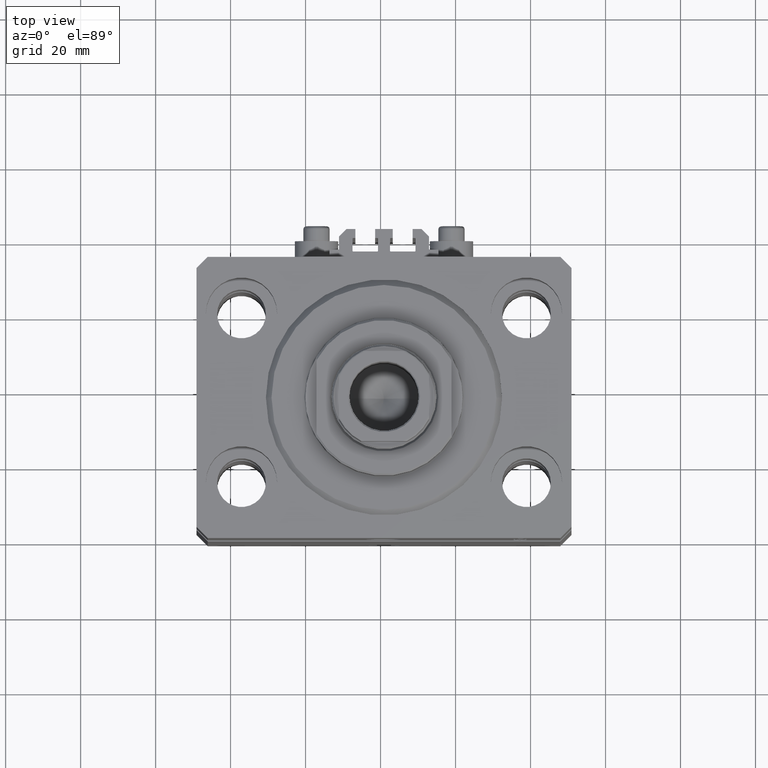
[diagram: clean part render]
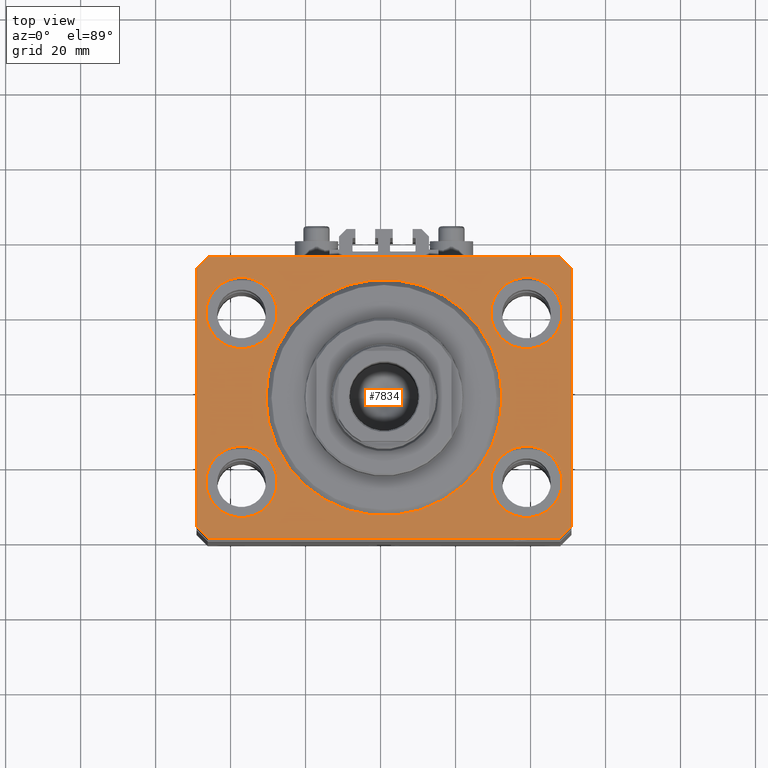
[diagram: same view with one face highlighted and labeled with its STEP entity id]
A machine part, top view. The second image highlights one B-rep face of the part: STEP entity #7834.
In plain terms, the highlighted planar face has unit normal (0, 0, 1).
Its self-contained STEP definition (entity closure, byte-faithful):
#200 = FACE_BOUND ( 'NONE', #35740, .T. ) ;
#749 = VECTOR ( 'NONE', #38030, 1000.000000000000114 ) ;
#789 = VERTEX_POINT ( 'NONE', #18789 ) ;
#1586 = ORIENTED_EDGE ( 'NONE', *, *, #20504, .T. ) ;
#1625 = LINE ( 'NONE', #40938, #749 ) ;
#2263 = EDGE_CURVE ( 'NONE', #32161, #27401, #27659, .T. ) ;
#2522 = ORIENTED_EDGE ( 'NONE', *, *, #18352, .F. ) ;
#2942 = DIRECTION ( 'NONE',  ( 0.000000000000000000, 0.000000000000000000, 1.000000000000000000 ) ) ;
#3011 = CARTESIAN_POINT ( 'NONE',  ( 50.00000000000000000, -34.50000000000000711, 0.000000000000000000 ) ) ;
#3075 = EDGE_CURVE ( 'NONE', #37662, #11479, #1625, .T. ) ;
#3100 = CARTESIAN_POINT ( 'NONE',  ( -47.50000000000000711, -22.50000000000000000, 0.000000000000000000 ) ) ;
#3101 = VERTEX_POINT ( 'NONE', #34403 ) ;
#3264 = CARTESIAN_POINT ( 'NONE',  ( 47.50000000000000711, -22.50000000000000000, 0.000000000000000000 ) ) ;
#3622 = DIRECTION ( 'NONE',  ( 1.000000000000000000, -1.476360405086644309E-16, 0.000000000000000000 ) ) ;
#3758 = VECTOR ( 'NONE', #42220, 1000.000000000000000 ) ;
#3837 = CIRCLE ( 'NONE', #27733, 9.500000000000001776 ) ;
#4015 = CARTESIAN_POINT ( 'NONE',  ( 47.00000000000056843, 37.49999999999999289, 0.000000000000000000 ) ) ;
#4347 = ORIENTED_EDGE ( 'NONE', *, *, #3075, .T. ) ;
#4532 = EDGE_LOOP ( 'NONE', ( #19072, #24451 ) ) ;
#5464 = CIRCLE ( 'NONE', #27794, 9.500000000000001776 ) ;
#5631 = CIRCLE ( 'NONE', #31788, 9.500000000000001776 ) ;
#5672 = AXIS2_PLACEMENT_3D ( 'NONE', #11631, #41055, #22713 ) ;
#5817 = CARTESIAN_POINT ( 'NONE',  ( 47.00000000000056843, 37.49999999999999289, 0.000000000000000000 ) ) ;
#6060 = ORIENTED_EDGE ( 'NONE', *, *, #32330, .T. ) ;
#6082 = CIRCLE ( 'NONE', #21502, 31.50000000000000000 ) ;
#6766 = DIRECTION ( 'NONE',  ( 0.000000000000000000, 0.000000000000000000, 1.000000000000000000 ) ) ;
#7046 = VECTOR ( 'NONE', #3622, 1000.000000000000000 ) ;
#7467 = DIRECTION ( 'NONE',  ( 1.000000000000000000, 0.000000000000000000, 0.000000000000000000 ) ) ;
#7512 = ORIENTED_EDGE ( 'NONE', *, *, #15716, .T. ) ;
#7667 = FACE_BOUND ( 'NONE', #37253, .T. ) ;
#7834 = ADVANCED_FACE ( 'NONE', ( #7667, #200, #29607, #10172, #33691, #24873 ), #39594, .T. ) ;
#7974 = CARTESIAN_POINT ( 'NONE',  ( 50.00000000000051870, 34.49999999999995026, 0.000000000000000000 ) ) ;
#8233 = CARTESIAN_POINT ( 'NONE',  ( 50.00000000000000000, -34.50000000000000711, 0.000000000000000000 ) ) ;
#8620 = CARTESIAN_POINT ( 'NONE',  ( 38.00000000000000711, -22.50000000000000000, 0.000000000000000000 ) ) ;
#8658 = CARTESIAN_POINT ( 'NONE',  ( -38.00000000000000711, 22.50000000000000000, 0.000000000000000000 ) ) ;
#8817 = CIRCLE ( 'NONE', #31924, 9.500000000000001776 ) ;
#8855 = CARTESIAN_POINT ( 'NONE',  ( -47.00000000000001421, 37.50000000000000000, 0.000000000000000000 ) ) ;
#9089 = EDGE_CURVE ( 'NONE', #15171, #27057, #5464, .T. ) ;
#9433 = DIRECTION ( 'NONE',  ( 1.000000000000000000, 0.000000000000000000, 0.000000000000000000 ) ) ;
#9602 = VERTEX_POINT ( 'NONE', #9664 ) ;
#9622 = EDGE_LOOP ( 'NONE', ( #40083, #2522 ) ) ;
#9664 = CARTESIAN_POINT ( 'NONE',  ( -50.00000000000001421, 34.50000000000000000, 0.000000000000000000 ) ) ;
#9956 = CARTESIAN_POINT ( 'NONE',  ( 38.00000000000000711, -22.50000000000000000, 0.000000000000000000 ) ) ;
#10172 = FACE_BOUND ( 'NONE', #4532, .T. ) ;
#10653 = CARTESIAN_POINT ( 'NONE',  ( -50.00000000000001421, 34.50000000000000000, 0.000000000000000000 ) ) ;
#10754 = VECTOR ( 'NONE', #26100, 1000.000000000000000 ) ;
#10801 = EDGE_CURVE ( 'NONE', #11479, #3101, #14469, .T. ) ;
#11479 = VERTEX_POINT ( 'NONE', #35486 ) ;
#11631 = CARTESIAN_POINT ( 'NONE',  ( 0.000000000000000000, 0.000000000000000000, 0.000000000000000000 ) ) ;
#13572 = DIRECTION ( 'NONE',  ( 1.000000000000000000, 0.000000000000000000, 0.000000000000000000 ) ) ;
#13578 = ORIENTED_EDGE ( 'NONE', *, *, #10801, .T. ) ;
#13620 = CIRCLE ( 'NONE', #33639, 9.500000000000001776 ) ;
#13914 = EDGE_CURVE ( 'NONE', #33687, #789, #5631, .T. ) ;
#14192 = DIRECTION ( 'NONE',  ( 1.000000000000000000, 0.000000000000000000, 0.000000000000000000 ) ) ;
#14469 = LINE ( 'NONE', #29184, #7046 ) ;
#14542 = EDGE_CURVE ( 'NONE', #43790, #37620, #34921, .T. ) ;
#14891 = CARTESIAN_POINT ( 'NONE',  ( 0.000000000000000000, 0.000000000000000000, 0.000000000000000000 ) ) ;
#14910 = DIRECTION ( 'NONE',  ( 1.000000000000000000, 0.000000000000000000, 0.000000000000000000 ) ) ;
#14927 = CARTESIAN_POINT ( 'NONE',  ( -38.00000000000000711, -22.50000000000000000, 0.000000000000000000 ) ) ;
#15171 = VERTEX_POINT ( 'NONE', #22143 ) ;
#15439 = CARTESIAN_POINT ( 'NONE',  ( 47.00000000000000000, -37.50000000000000711, 0.000000000000000000 ) ) ;
#15716 = EDGE_CURVE ( 'NONE', #9602, #37662, #28040, .T. ) ;
#16158 = LINE ( 'NONE', #15439, #23688 ) ;
#16218 = AXIS2_PLACEMENT_3D ( 'NONE', #14891, #2942, #22358 ) ;
#16465 = VECTOR ( 'NONE', #25358, 1000.000000000000000 ) ;
#16968 = ORIENTED_EDGE ( 'NONE', *, *, #31865, .F. ) ;
#16973 = ORIENTED_EDGE ( 'NONE', *, *, #14542, .F. ) ;
#17071 = VERTEX_POINT ( 'NONE', #42523 ) ;
#17451 = ORIENTED_EDGE ( 'NONE', *, *, #33978, .T. ) ;
#17576 = ORIENTED_EDGE ( 'NONE', *, *, #26584, .F. ) ;
#18352 = EDGE_CURVE ( 'NONE', #17071, #19749, #8817, .T. ) ;
#18789 = CARTESIAN_POINT ( 'NONE',  ( -28.50000000000000355, -22.50000000000000000, 0.000000000000000000 ) ) ;
#18946 = CARTESIAN_POINT ( 'NONE',  ( 31.50000000000000000, 0.000000000000000000, 0.000000000000000000 ) ) ;
#19072 = ORIENTED_EDGE ( 'NONE', *, *, #36601, .F. ) ;
#19173 = AXIS2_PLACEMENT_3D ( 'NONE', #21423, #47234, #14192 ) ;
#19749 = VERTEX_POINT ( 'NONE', #27395 ) ;
#20504 = EDGE_CURVE ( 'NONE', #28792, #26880, #38892, .T. ) ;
#21423 = CARTESIAN_POINT ( 'NONE',  ( -38.00000000000000711, 22.50000000000000000, 0.000000000000000000 ) ) ;
#21502 = AXIS2_PLACEMENT_3D ( 'NONE', #27751, #42469, #9433 ) ;
#21517 = DIRECTION ( 'NONE',  ( 0.000000000000000000, 0.000000000000000000, 1.000000000000000000 ) ) ;
#22143 = CARTESIAN_POINT ( 'NONE',  ( 28.50000000000000355, -22.50000000000000000, 0.000000000000000000 ) ) ;
#22358 = DIRECTION ( 'NONE',  ( 1.000000000000000000, 0.000000000000000000, -0.000000000000000000 ) ) ;
#22713 = DIRECTION ( 'NONE',  ( 1.000000000000000000, 0.000000000000000000, 0.000000000000000000 ) ) ;
#23006 = DIRECTION ( 'NONE',  ( 1.000000000000000000, 0.000000000000000000, 0.000000000000000000 ) ) ;
#23324 = DIRECTION ( 'NONE',  ( 0.000000000000000000, 0.000000000000000000, 1.000000000000000000 ) ) ;
#23682 = EDGE_CURVE ( 'NONE', #19749, #17071, #13620, .T. ) ;
#23688 = VECTOR ( 'NONE', #30149, 1000.000000000000000 ) ;
#24030 = DIRECTION ( 'NONE',  ( -0.7071067811865483499, -0.7071067811865466846, 0.000000000000000000 ) ) ;
#24451 = ORIENTED_EDGE ( 'NONE', *, *, #2263, .F. ) ;
#24494 = CIRCLE ( 'NONE', #29887, 9.500000000000001776 ) ;
#24799 = DIRECTION ( 'NONE',  ( 0.000000000000000000, 0.000000000000000000, 1.000000000000000000 ) ) ;
#24873 = FACE_OUTER_BOUND ( 'NONE', #40876, .T. ) ;
#25341 = EDGE_CURVE ( 'NONE', #3101, #27514, #16158, .T. ) ;
#25358 = DIRECTION ( 'NONE',  ( 2.011273595335428326E-16, -1.000000000000000000, 0.000000000000000000 ) ) ;
#25642 = LINE ( 'NONE', #3011, #10754 ) ;
#26100 = DIRECTION ( 'NONE',  ( 7.441712302741091634E-15, 1.000000000000000000, 0.000000000000000000 ) ) ;
#26166 = CARTESIAN_POINT ( 'NONE',  ( -31.50000000000000000, 3.857637417314162689E-15, 0.000000000000000000 ) ) ;
#26221 = CARTESIAN_POINT ( 'NONE',  ( -38.00000000000000711, -22.50000000000000000, 0.000000000000000000 ) ) ;
#26333 = ORIENTED_EDGE ( 'NONE', *, *, #25341, .T. ) ;
#26584 = EDGE_CURVE ( 'NONE', #789, #33687, #24494, .T. ) ;
#26880 = VERTEX_POINT ( 'NONE', #4015 ) ;
#27057 = VERTEX_POINT ( 'NONE', #3264 ) ;
#27395 = CARTESIAN_POINT ( 'NONE',  ( 47.50000000000000711, 22.50000000000001421, 0.000000000000000000 ) ) ;
#27401 = VERTEX_POINT ( 'NONE', #30936 ) ;
#27514 = VERTEX_POINT ( 'NONE', #8233 ) ;
#27659 = CIRCLE ( 'NONE', #19173, 9.500000000000001776 ) ;
#27733 = AXIS2_PLACEMENT_3D ( 'NONE', #9956, #31896, #13572 ) ;
#27751 = CARTESIAN_POINT ( 'NONE',  ( 0.000000000000000000, 0.000000000000000000, 0.000000000000000000 ) ) ;
#27794 = AXIS2_PLACEMENT_3D ( 'NONE', #8620, #23324, #44329 ) ;
#28040 = LINE ( 'NONE', #10653, #16465 ) ;
#28509 = DIRECTION ( 'NONE',  ( 1.000000000000000000, 0.000000000000000000, 0.000000000000000000 ) ) ;
#28734 = CARTESIAN_POINT ( 'NONE',  ( 50.00000000000051870, 34.49999999999995026, 0.000000000000000000 ) ) ;
#28792 = VERTEX_POINT ( 'NONE', #7974 ) ;
#29184 = CARTESIAN_POINT ( 'NONE',  ( -47.00000000000000000, -37.49999999999999289, 0.000000000000000000 ) ) ;
#29607 = FACE_BOUND ( 'NONE', #9622, .T. ) ;
#29887 = AXIS2_PLACEMENT_3D ( 'NONE', #14927, #6766, #7467 ) ;
#30149 = DIRECTION ( 'NONE',  ( 0.7071067811865483499, 0.7071067811865466846, 0.000000000000000000 ) ) ;
#30166 = ORIENTED_EDGE ( 'NONE', *, *, #30276, .T. ) ;
#30276 = EDGE_CURVE ( 'NONE', #27514, #28792, #25642, .T. ) ;
#30936 = CARTESIAN_POINT ( 'NONE',  ( -28.50000000000000355, 22.50000000000000000, 0.000000000000000000 ) ) ;
#31648 = AXIS2_PLACEMENT_3D ( 'NONE', #8658, #24799, #35183 ) ;
#31788 = AXIS2_PLACEMENT_3D ( 'NONE', #26221, #45288, #14910 ) ;
#31865 = EDGE_CURVE ( 'NONE', #27057, #15171, #3837, .T. ) ;
#31896 = DIRECTION ( 'NONE',  ( 0.000000000000000000, 0.000000000000000000, 1.000000000000000000 ) ) ;
#31924 = AXIS2_PLACEMENT_3D ( 'NONE', #40082, #21517, #28509 ) ;
#32161 = VERTEX_POINT ( 'NONE', #37409 ) ;
#32330 = EDGE_CURVE ( 'NONE', #26880, #47208, #35225, .T. ) ;
#32348 = EDGE_CURVE ( 'NONE', #37620, #43790, #6082, .T. ) ;
#32479 = ORIENTED_EDGE ( 'NONE', *, *, #13914, .F. ) ;
#33639 = AXIS2_PLACEMENT_3D ( 'NONE', #42076, #38211, #23006 ) ;
#33687 = VERTEX_POINT ( 'NONE', #3100 ) ;
#33691 = FACE_BOUND ( 'NONE', #45867, .T. ) ;
#33978 = EDGE_CURVE ( 'NONE', #47208, #9602, #35601, .T. ) ;
#34403 = CARTESIAN_POINT ( 'NONE',  ( 47.00000000000000000, -37.50000000000000711, 0.000000000000000000 ) ) ;
#34866 = CARTESIAN_POINT ( 'NONE',  ( -50.00000000000000000, -34.50000000000000000, 0.000000000000000000 ) ) ;
#34921 = CIRCLE ( 'NONE', #5672, 31.50000000000000000 ) ;
#35183 = DIRECTION ( 'NONE',  ( 1.000000000000000000, 0.000000000000000000, 0.000000000000000000 ) ) ;
#35225 = LINE ( 'NONE', #5817, #3758 ) ;
#35486 = CARTESIAN_POINT ( 'NONE',  ( -47.00000000000000000, -37.49999999999999289, 0.000000000000000000 ) ) ;
#35601 = LINE ( 'NONE', #45749, #46943 ) ;
#35740 = EDGE_LOOP ( 'NONE', ( #16968, #40918 ) ) ;
#36601 = EDGE_CURVE ( 'NONE', #27401, #32161, #45493, .T. ) ;
#37253 = EDGE_LOOP ( 'NONE', ( #17576, #32479 ) ) ;
#37409 = CARTESIAN_POINT ( 'NONE',  ( -47.50000000000000711, 22.50000000000000000, 0.000000000000000000 ) ) ;
#37620 = VERTEX_POINT ( 'NONE', #18946 ) ;
#37662 = VERTEX_POINT ( 'NONE', #34866 ) ;
#38030 = DIRECTION ( 'NONE',  ( 0.7071067811865491270, -0.7071067811865459074, 0.000000000000000000 ) ) ;
#38211 = DIRECTION ( 'NONE',  ( 0.000000000000000000, 0.000000000000000000, 1.000000000000000000 ) ) ;
#38892 = LINE ( 'NONE', #28734, #42012 ) ;
#39489 = ORIENTED_EDGE ( 'NONE', *, *, #32348, .F. ) ;
#39594 = PLANE ( 'NONE',  #16218 ) ;
#40082 = CARTESIAN_POINT ( 'NONE',  ( 38.00000000000000711, 22.50000000000001421, 0.000000000000000000 ) ) ;
#40083 = ORIENTED_EDGE ( 'NONE', *, *, #23682, .F. ) ;
#40876 = EDGE_LOOP ( 'NONE', ( #6060, #17451, #7512, #4347, #13578, #26333, #30166, #1586 ) ) ;
#40918 = ORIENTED_EDGE ( 'NONE', *, *, #9089, .F. ) ;
#40938 = CARTESIAN_POINT ( 'NONE',  ( -50.00000000000000000, -34.50000000000000000, 0.000000000000000000 ) ) ;
#41055 = DIRECTION ( 'NONE',  ( 0.000000000000000000, 0.000000000000000000, 1.000000000000000000 ) ) ;
#42012 = VECTOR ( 'NONE', #47309, 1000.000000000000114 ) ;
#42076 = CARTESIAN_POINT ( 'NONE',  ( 38.00000000000000711, 22.50000000000001421, 0.000000000000000000 ) ) ;
#42220 = DIRECTION ( 'NONE',  ( -1.000000000000000000, 7.381802025433175941E-17, 0.000000000000000000 ) ) ;
#42469 = DIRECTION ( 'NONE',  ( 0.000000000000000000, 0.000000000000000000, 1.000000000000000000 ) ) ;
#42523 = CARTESIAN_POINT ( 'NONE',  ( 28.50000000000000355, 22.50000000000001421, 0.000000000000000000 ) ) ;
#43790 = VERTEX_POINT ( 'NONE', #26166 ) ;
#44329 = DIRECTION ( 'NONE',  ( 1.000000000000000000, 0.000000000000000000, 0.000000000000000000 ) ) ;
#45288 = DIRECTION ( 'NONE',  ( 0.000000000000000000, 0.000000000000000000, 1.000000000000000000 ) ) ;
#45493 = CIRCLE ( 'NONE', #31648, 9.500000000000001776 ) ;
#45749 = CARTESIAN_POINT ( 'NONE',  ( -47.00000000000001421, 37.50000000000000000, 0.000000000000000000 ) ) ;
#45867 = EDGE_LOOP ( 'NONE', ( #39489, #16973 ) ) ;
#46943 = VECTOR ( 'NONE', #24030, 1000.000000000000000 ) ;
#47208 = VERTEX_POINT ( 'NONE', #8855 ) ;
#47234 = DIRECTION ( 'NONE',  ( 0.000000000000000000, 0.000000000000000000, 1.000000000000000000 ) ) ;
#47309 = DIRECTION ( 'NONE',  ( -0.7071067811865361374, 0.7071067811865588970, 0.000000000000000000 ) ) ;